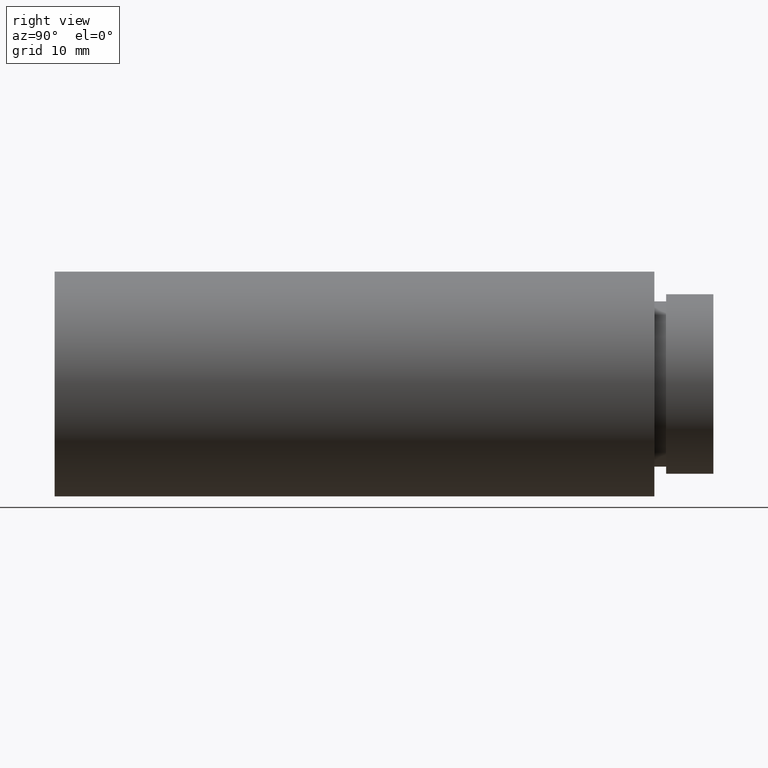
[diagram: clean part render]
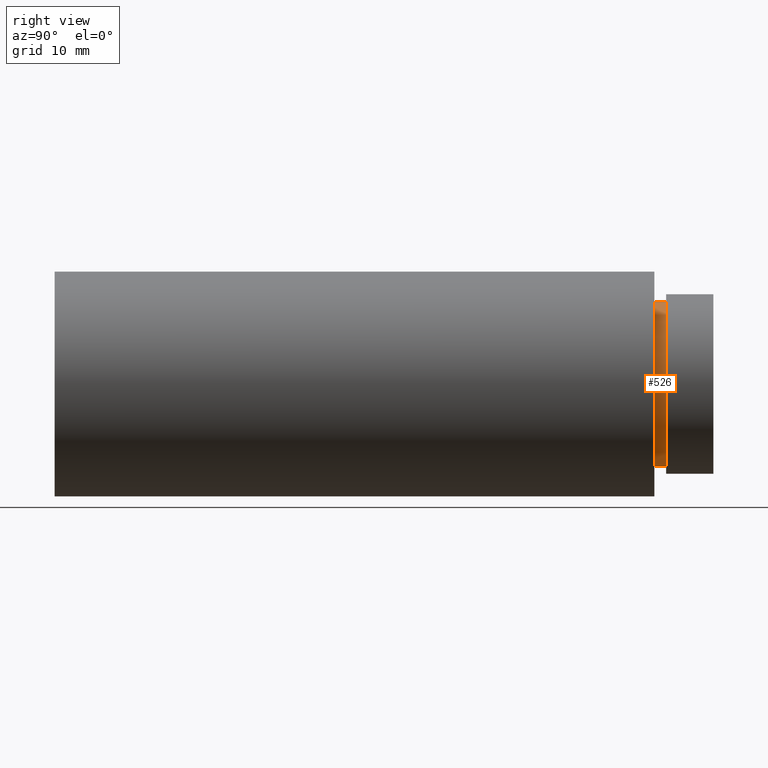
[diagram: same view with one face highlighted and labeled with its STEP entity id]
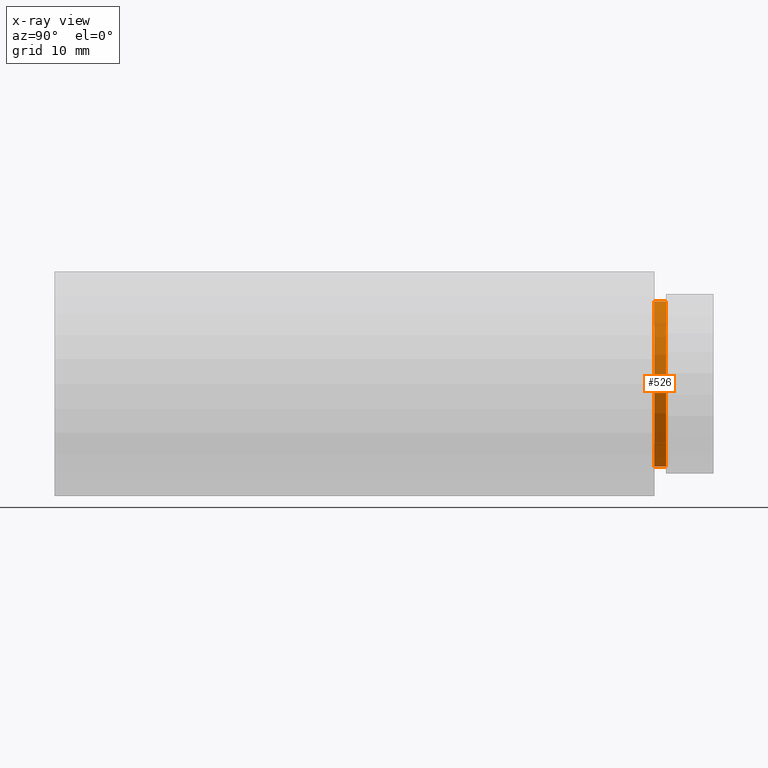
[diagram: x-ray of the same camera — body ghosted, the highlighted face saturated]
A machine part, right view. The second image highlights one B-rep face of the part: STEP entity #526.
The next image is the same camera in x-ray: the body ghosted, the highlighted face saturated — about 0% of this face is hidden behind the body in this view.
In plain terms, the highlighted cylindrical surface (partial cylindrical patch) has radius 7 mm, axis along (-0, 1, -0).
Its self-contained STEP definition (entity closure, byte-faithful):
#16 = VERTEX_POINT ( 'NONE', #70 ) ;
#17 = CARTESIAN_POINT ( 'NONE',  ( 0.0000000000000000000, 50.79999999999998300, 7.000000000000010700 ) ) ;
#32 = EDGE_CURVE ( 'NONE', #519, #318, #593, .T. ) ;
#36 = EDGE_LOOP ( 'NONE', ( #48, #394, #427, #589 ) ) ;
#48 = ORIENTED_EDGE ( 'NONE', *, *, #547, .T. ) ;
#70 = CARTESIAN_POINT ( 'NONE',  ( 8.572527594031485000E-016, 50.79999999999998300, -7.000000000000010700 ) ) ;
#76 = AXIS2_PLACEMENT_3D ( 'NONE', #425, #295, #293 ) ;
#91 = LINE ( 'NONE', #256, #216 ) ;
#108 = DIRECTION ( 'NONE',  ( -0.0000000000000000000, 1.000000000000000000, -0.0000000000000000000 ) ) ;
#131 = VECTOR ( 'NONE', #108, 1000.000000000000000 ) ;
#167 = DIRECTION ( 'NONE',  ( 0.0000000000000000000, 0.0000000000000000000, 1.000000000000000000 ) ) ;
#214 = DIRECTION ( 'NONE',  ( -0.0000000000000000000, 1.000000000000000000, -0.0000000000000000000 ) ) ;
#216 = VECTOR ( 'NONE', #214, 1000.000000000000000 ) ;
#242 = CARTESIAN_POINT ( 'NONE',  ( 8.572527594031485000E-016, 161.3761669434274500, -7.000000000000010700 ) ) ;
#243 = AXIS2_PLACEMENT_3D ( 'NONE', #251, #428, #522 ) ;
#251 = CARTESIAN_POINT ( 'NONE',  ( 0.0000000000000000000, 161.3761669434274500, 0.0000000000000000000 ) ) ;
#256 = CARTESIAN_POINT ( 'NONE',  ( 0.0000000000000000000, 161.3761669434274500, 7.000000000000010700 ) ) ;
#257 = FACE_OUTER_BOUND ( 'NONE', #36, .T. ) ;
#258 = DIRECTION ( 'NONE',  ( -0.0000000000000000000, 1.000000000000000000, -0.0000000000000000000 ) ) ;
#271 = CIRCLE ( 'NONE', #76, 7.000000000000010700 ) ;
#272 = AXIS2_PLACEMENT_3D ( 'NONE', #483, #258, #167 ) ;
#293 = DIRECTION ( 'NONE',  ( 0.0000000000000000000, 0.0000000000000000000, 1.000000000000000000 ) ) ;
#295 = DIRECTION ( 'NONE',  ( -0.0000000000000000000, 1.000000000000000000, -0.0000000000000000000 ) ) ;
#318 = VERTEX_POINT ( 'NONE', #525 ) ;
#376 = EDGE_CURVE ( 'NONE', #528, #519, #91, .T. ) ;
#390 = LINE ( 'NONE', #242, #131 ) ;
#394 = ORIENTED_EDGE ( 'NONE', *, *, #574, .T. ) ;
#414 = CARTESIAN_POINT ( 'NONE',  ( 0.0000000000000000000, 51.79999999999998300, 7.000000000000010700 ) ) ;
#425 = CARTESIAN_POINT ( 'NONE',  ( 0.0000000000000000000, 50.79999999999998300, 0.0000000000000000000 ) ) ;
#427 = ORIENTED_EDGE ( 'NONE', *, *, #32, .F. ) ;
#428 = DIRECTION ( 'NONE',  ( -0.0000000000000000000, 1.000000000000000000, -0.0000000000000000000 ) ) ;
#483 = CARTESIAN_POINT ( 'NONE',  ( 0.0000000000000000000, 51.79999999999998300, 0.0000000000000000000 ) ) ;
#519 = VERTEX_POINT ( 'NONE', #414 ) ;
#522 = DIRECTION ( 'NONE',  ( 0.0000000000000000000, 0.0000000000000000000, 1.000000000000000000 ) ) ;
#525 = CARTESIAN_POINT ( 'NONE',  ( 8.572527594031485000E-016, 51.79999999999998300, -7.000000000000010700 ) ) ;
#526 = ADVANCED_FACE ( 'NONE', ( #257 ), #617, .T. ) ;
#528 = VERTEX_POINT ( 'NONE', #17 ) ;
#547 = EDGE_CURVE ( 'NONE', #528, #16, #271, .T. ) ;
#574 = EDGE_CURVE ( 'NONE', #16, #318, #390, .T. ) ;
#589 = ORIENTED_EDGE ( 'NONE', *, *, #376, .F. ) ;
#593 = CIRCLE ( 'NONE', #272, 7.000000000000010700 ) ;
#617 = CYLINDRICAL_SURFACE ( 'NONE', #243, 7.000000000000010700 ) ;